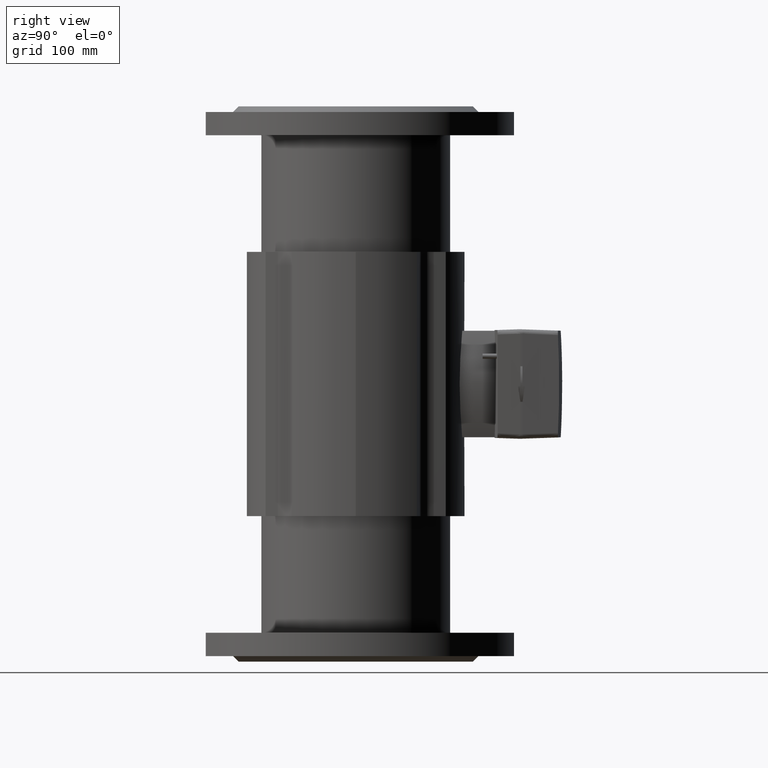
[diagram: clean part render]
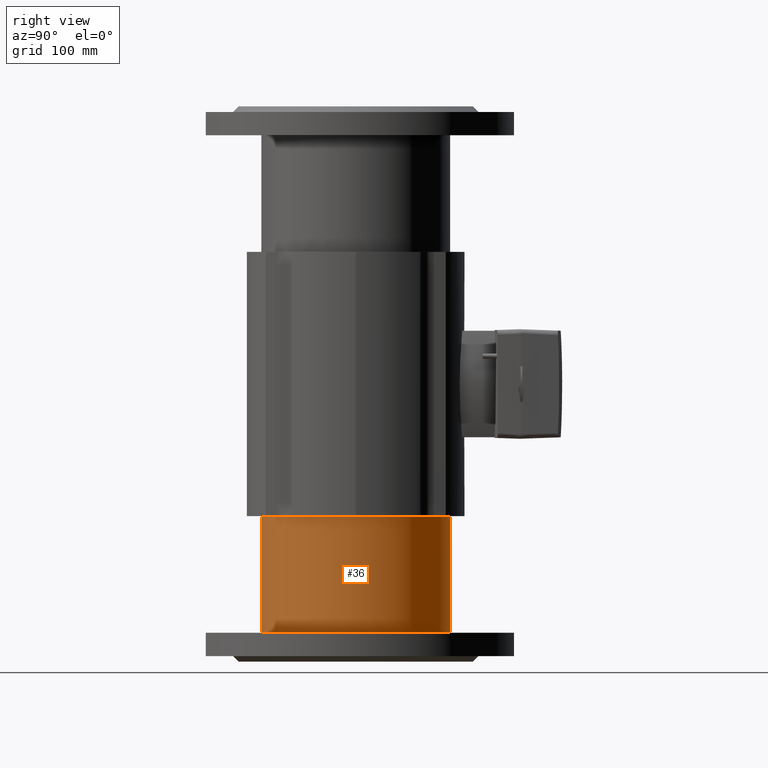
[diagram: same view with one face highlighted and labeled with its STEP entity id]
A machine part, right view. The second image highlights one B-rep face of the part: STEP entity #36.
In plain terms, the highlighted cylindrical surface (partial cylindrical patch) has radius 85 mm, axis along (-0, -0, -1).
Its self-contained STEP definition (entity closure, byte-faithful):
#36 = ADVANCED_FACE ( 'NONE', ( #1610 ), #5669, .T. ) ;
#148 = ORIENTED_EDGE ( 'NONE', *, *, #4144, .F. ) ;
#270 = VERTEX_POINT ( 'NONE', #3652 ) ;
#619 = DIRECTION ( 'NONE',  ( 0.0000000000000000000, 1.000000000000000000, -2.925615526614575854E-17 ) ) ;
#685 = LINE ( 'NONE', #5608, #5866 ) ;
#699 = AXIS2_PLACEMENT_3D ( 'NONE', #3209, #5245, #3141 ) ;
#779 = VERTEX_POINT ( 'NONE', #4070 ) ;
#1040 = ORIENTED_EDGE ( 'NONE', *, *, #4559, .T. ) ;
#1091 = DIRECTION ( 'NONE',  ( -0.0000000000000000000, -2.925615526614575854E-17, -1.000000000000000000 ) ) ;
#1112 = CARTESIAN_POINT ( 'NONE',  ( 0.0000000000000000000, 0.0000000000000000000, 0.0000000000000000000 ) ) ;
#1515 = CARTESIAN_POINT ( 'NONE',  ( 0.0000000000000000000, 84.99999999999998579, -2.486773197622389199E-15 ) ) ;
#1549 = VECTOR ( 'NONE', #4605, 1000.000000000000000 ) ;
#1610 = FACE_OUTER_BOUND ( 'NONE', #4666, .T. ) ;
#2424 = CARTESIAN_POINT ( 'NONE',  ( 0.0000000000000000000, -3.481482476671344878E-15, -119.0000000000000000 ) ) ;
#2519 = EDGE_CURVE ( 'NONE', #779, #6241, #6013, .T. ) ;
#2555 = CIRCLE ( 'NONE', #3937, 84.99999999999998579 ) ;
#3130 = DIRECTION ( 'NONE',  ( -0.0000000000000000000, -2.925615526614575854E-17, -1.000000000000000000 ) ) ;
#3141 = DIRECTION ( 'NONE',  ( 0.0000000000000000000, 1.000000000000000000, 0.0000000000000000000 ) ) ;
#3209 = CARTESIAN_POINT ( 'NONE',  ( 0.0000000000000000000, -6.553378779616650900E-15, -224.0000000000000284 ) ) ;
#3652 = CARTESIAN_POINT ( 'NONE',  ( 0.0000000000000000000, 84.99999999999998579, -119.0000000000000000 ) ) ;
#3937 = AXIS2_PLACEMENT_3D ( 'NONE', #2424, #1091, #4491 ) ;
#4070 = CARTESIAN_POINT ( 'NONE',  ( 0.0000000000000000000, 84.99999999999997158, -224.0000000000000284 ) ) ;
#4078 = DIRECTION ( 'NONE',  ( -0.0000000000000000000, -2.925615526614575854E-17, -1.000000000000000000 ) ) ;
#4144 = EDGE_CURVE ( 'NONE', #270, #779, #4536, .T. ) ;
#4334 = CARTESIAN_POINT ( 'NONE',  ( 1.040949779275249864E-14, -84.99999999999997158, -224.0000000000000284 ) ) ;
#4481 = CARTESIAN_POINT ( 'NONE',  ( 1.040949779275250021E-14, -84.99999999999998579, -119.0000000000000000 ) ) ;
#4487 = ORIENTED_EDGE ( 'NONE', *, *, #2519, .F. ) ;
#4491 = DIRECTION ( 'NONE',  ( 0.0000000000000000000, 1.000000000000000000, 0.0000000000000000000 ) ) ;
#4536 = LINE ( 'NONE', #1515, #1549 ) ;
#4559 = EDGE_CURVE ( 'NONE', #270, #5664, #2555, .T. ) ;
#4605 = DIRECTION ( 'NONE',  ( -0.0000000000000000000, -2.925615526614575854E-17, -1.000000000000000000 ) ) ;
#4666 = EDGE_LOOP ( 'NONE', ( #1040, #4967, #4487, #148 ) ) ;
#4967 = ORIENTED_EDGE ( 'NONE', *, *, #6106, .T. ) ;
#5162 = AXIS2_PLACEMENT_3D ( 'NONE', #1112, #3130, #619 ) ;
#5245 = DIRECTION ( 'NONE',  ( -0.0000000000000000000, -2.925615526614575854E-17, -1.000000000000000000 ) ) ;
#5608 = CARTESIAN_POINT ( 'NONE',  ( 1.040949779275250021E-14, -84.99999999999998579, 2.486773197622389199E-15 ) ) ;
#5664 = VERTEX_POINT ( 'NONE', #4481 ) ;
#5669 = CYLINDRICAL_SURFACE ( 'NONE', #5162, 84.99999999999998579 ) ;
#5866 = VECTOR ( 'NONE', #4078, 1000.000000000000000 ) ;
#6013 = CIRCLE ( 'NONE', #699, 84.99999999999997158 ) ;
#6106 = EDGE_CURVE ( 'NONE', #5664, #6241, #685, .T. ) ;
#6241 = VERTEX_POINT ( 'NONE', #4334 ) ;